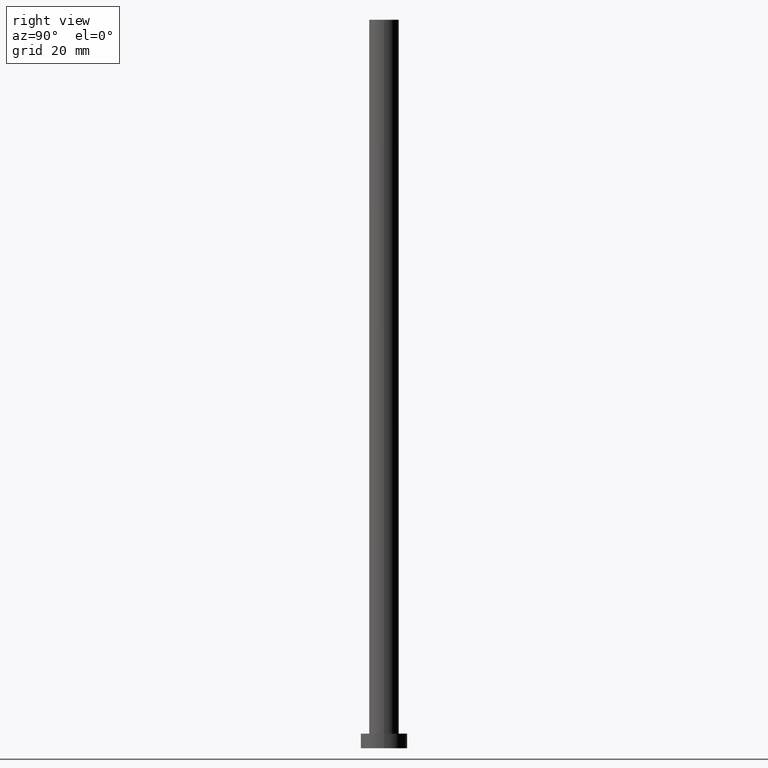
[diagram: clean part render]
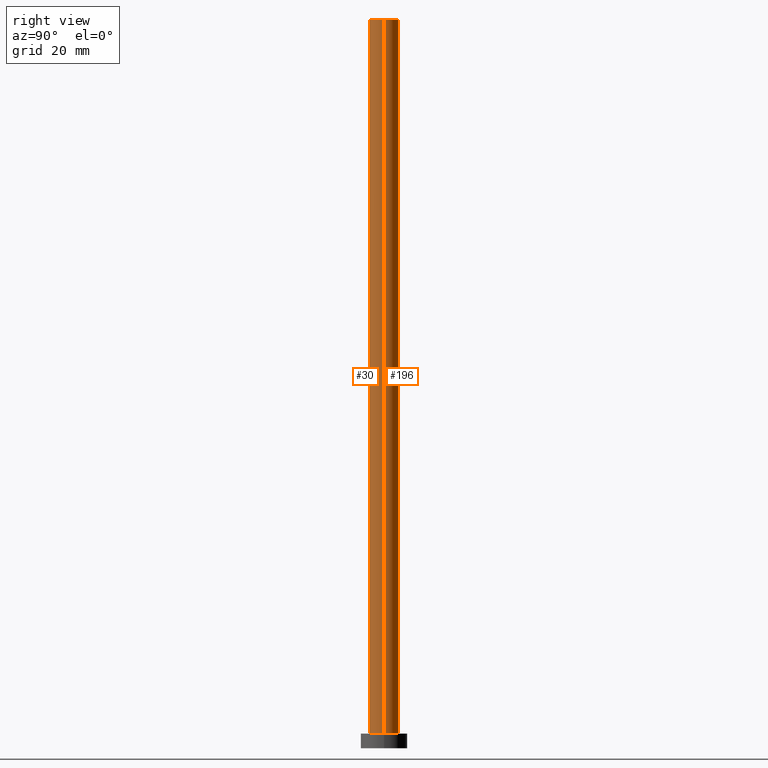
[diagram: same view with one multi-face feature highlighted, each face labeled with its STEP entity id]
A machine part, right view. The highlighted faces form ONE feature: a constant-radius fillet chain: 2 tangent blend faces with common blend radius 5.1 mm. The faces share edges in the B-rep.
Their STEP definitions:
[1] entity #196 (Cylinder):
#18 = ORIENTED_EDGE ( 'NONE', *, *, #251, .F. ) ;
#20 = CARTESIAN_POINT ( 'NONE',  ( -5.099999999999999645, 0.000000000000000000, 250.0000000000000000 ) ) ;
#22 = AXIS2_PLACEMENT_3D ( 'NONE', #241, #71, #64 ) ;
#31 = DIRECTION ( 'NONE',  ( 1.000000000000000000, 0.000000000000000000, 0.000000000000000000 ) ) ;
#39 = VERTEX_POINT ( 'NONE', #253 ) ;
#42 = CARTESIAN_POINT ( 'NONE',  ( 5.099999999999999645, 6.245698675651500839E-16, 250.0000000000000000 ) ) ;
#45 = AXIS2_PLACEMENT_3D ( 'NONE', #177, #107, #145 ) ;
#60 = ORIENTED_EDGE ( 'NONE', *, *, #222, .F. ) ;
#64 = DIRECTION ( 'NONE',  ( -1.000000000000000000, 0.000000000000000000, 0.000000000000000000 ) ) ;
#71 = DIRECTION ( 'NONE',  ( -0.000000000000000000, -0.000000000000000000, -1.000000000000000000 ) ) ;
#73 = EDGE_CURVE ( 'NONE', #218, #39, #232, .T. ) ;
#75 = DIRECTION ( 'NONE',  ( 0.000000000000000000, 0.000000000000000000, 1.000000000000000000 ) ) ;
#80 = VERTEX_POINT ( 'NONE', #179 ) ;
#89 = CARTESIAN_POINT ( 'NONE',  ( -5.099999999999999645, 0.000000000000000000, 5.000000000000000000 ) ) ;
#94 = ORIENTED_EDGE ( 'NONE', *, *, #73, .T. ) ;
#99 = ORIENTED_EDGE ( 'NONE', *, *, #130, .T. ) ;
#100 = VECTOR ( 'NONE', #237, 1000.000000000000000 ) ;
#104 = DIRECTION ( 'NONE',  ( -0.000000000000000000, -0.000000000000000000, -1.000000000000000000 ) ) ;
#107 = DIRECTION ( 'NONE',  ( 0.000000000000000000, 0.000000000000000000, 1.000000000000000000 ) ) ;
#118 = CARTESIAN_POINT ( 'NONE',  ( 5.099999999999999645, 6.245698675651500839E-16, 250.0000000000000000 ) ) ;
#125 = FACE_OUTER_BOUND ( 'NONE', #174, .T. ) ;
#126 = CYLINDRICAL_SURFACE ( 'NONE', #22, 5.099999999999999645 ) ;
#130 = EDGE_CURVE ( 'NONE', #39, #255, #183, .T. ) ;
#145 = DIRECTION ( 'NONE',  ( 1.000000000000000000, 0.000000000000000000, 0.000000000000000000 ) ) ;
#156 = CIRCLE ( 'NONE', #202, 5.099999999999999645 ) ;
#167 = CARTESIAN_POINT ( 'NONE',  ( 0.000000000000000000, 0.000000000000000000, 250.0000000000000000 ) ) ;
#169 = VECTOR ( 'NONE', #104, 1000.000000000000000 ) ;
#174 = EDGE_LOOP ( 'NONE', ( #18, #94, #99, #60 ) ) ;
#177 = CARTESIAN_POINT ( 'NONE',  ( 0.000000000000000000, 0.000000000000000000, 5.000000000000000000 ) ) ;
#179 = CARTESIAN_POINT ( 'NONE',  ( -5.099999999999999645, 0.000000000000000000, 250.0000000000000000 ) ) ;
#183 = CIRCLE ( 'NONE', #45, 5.099999999999999645 ) ;
#196 = ADVANCED_FACE ( 'NONE', ( #125 ), #126, .T. ) ;
#199 = LINE ( 'NONE', #20, #169 ) ;
#202 = AXIS2_PLACEMENT_3D ( 'NONE', #167, #75, #31 ) ;
#218 = VERTEX_POINT ( 'NONE', #42 ) ;
#222 = EDGE_CURVE ( 'NONE', #80, #255, #199, .T. ) ;
#232 = LINE ( 'NONE', #118, #100 ) ;
#237 = DIRECTION ( 'NONE',  ( -0.000000000000000000, -0.000000000000000000, -1.000000000000000000 ) ) ;
#241 = CARTESIAN_POINT ( 'NONE',  ( 0.000000000000000000, 0.000000000000000000, 250.0000000000000000 ) ) ;
#251 = EDGE_CURVE ( 'NONE', #218, #80, #156, .T. ) ;
#253 = CARTESIAN_POINT ( 'NONE',  ( 5.099999999999999645, 6.245698675651500839E-16, 5.000000000000000000 ) ) ;
#255 = VERTEX_POINT ( 'NONE', #89 ) ;
[2] entity #30 (Cylinder):
#13 = ORIENTED_EDGE ( 'NONE', *, *, #187, .T. ) ;
#17 = ORIENTED_EDGE ( 'NONE', *, *, #101, .F. ) ;
#20 = CARTESIAN_POINT ( 'NONE',  ( -5.099999999999999645, 0.000000000000000000, 250.0000000000000000 ) ) ;
#21 = DIRECTION ( 'NONE',  ( 0.000000000000000000, 0.000000000000000000, 1.000000000000000000 ) ) ;
#30 = ADVANCED_FACE ( 'NONE', ( #36 ), #158, .T. ) ;
#36 = FACE_OUTER_BOUND ( 'NONE', #58, .T. ) ;
#39 = VERTEX_POINT ( 'NONE', #253 ) ;
#40 = AXIS2_PLACEMENT_3D ( 'NONE', #239, #67, #205 ) ;
#42 = CARTESIAN_POINT ( 'NONE',  ( 5.099999999999999645, 6.245698675651500839E-16, 250.0000000000000000 ) ) ;
#44 = CARTESIAN_POINT ( 'NONE',  ( 0.000000000000000000, 0.000000000000000000, 5.000000000000000000 ) ) ;
#54 = AXIS2_PLACEMENT_3D ( 'NONE', #117, #171, #140 ) ;
#58 = EDGE_LOOP ( 'NONE', ( #154, #17, #95, #13 ) ) ;
#67 = DIRECTION ( 'NONE',  ( 0.000000000000000000, 0.000000000000000000, 1.000000000000000000 ) ) ;
#73 = EDGE_CURVE ( 'NONE', #218, #39, #232, .T. ) ;
#74 = AXIS2_PLACEMENT_3D ( 'NONE', #44, #21, #236 ) ;
#80 = VERTEX_POINT ( 'NONE', #179 ) ;
#89 = CARTESIAN_POINT ( 'NONE',  ( -5.099999999999999645, 0.000000000000000000, 5.000000000000000000 ) ) ;
#95 = ORIENTED_EDGE ( 'NONE', *, *, #222, .T. ) ;
#100 = VECTOR ( 'NONE', #237, 1000.000000000000000 ) ;
#101 = EDGE_CURVE ( 'NONE', #80, #218, #240, .T. ) ;
#104 = DIRECTION ( 'NONE',  ( -0.000000000000000000, -0.000000000000000000, -1.000000000000000000 ) ) ;
#117 = CARTESIAN_POINT ( 'NONE',  ( 0.000000000000000000, 0.000000000000000000, 250.0000000000000000 ) ) ;
#118 = CARTESIAN_POINT ( 'NONE',  ( 5.099999999999999645, 6.245698675651500839E-16, 250.0000000000000000 ) ) ;
#140 = DIRECTION ( 'NONE',  ( -1.000000000000000000, 0.000000000000000000, 0.000000000000000000 ) ) ;
#154 = ORIENTED_EDGE ( 'NONE', *, *, #73, .F. ) ;
#158 = CYLINDRICAL_SURFACE ( 'NONE', #54, 5.099999999999999645 ) ;
#169 = VECTOR ( 'NONE', #104, 1000.000000000000000 ) ;
#171 = DIRECTION ( 'NONE',  ( -0.000000000000000000, -0.000000000000000000, -1.000000000000000000 ) ) ;
#178 = CIRCLE ( 'NONE', #74, 5.099999999999999645 ) ;
#179 = CARTESIAN_POINT ( 'NONE',  ( -5.099999999999999645, 0.000000000000000000, 250.0000000000000000 ) ) ;
#187 = EDGE_CURVE ( 'NONE', #255, #39, #178, .T. ) ;
#199 = LINE ( 'NONE', #20, #169 ) ;
#205 = DIRECTION ( 'NONE',  ( 1.000000000000000000, 0.000000000000000000, 0.000000000000000000 ) ) ;
#218 = VERTEX_POINT ( 'NONE', #42 ) ;
#222 = EDGE_CURVE ( 'NONE', #80, #255, #199, .T. ) ;
#232 = LINE ( 'NONE', #118, #100 ) ;
#236 = DIRECTION ( 'NONE',  ( 1.000000000000000000, 0.000000000000000000, 0.000000000000000000 ) ) ;
#237 = DIRECTION ( 'NONE',  ( -0.000000000000000000, -0.000000000000000000, -1.000000000000000000 ) ) ;
#239 = CARTESIAN_POINT ( 'NONE',  ( 0.000000000000000000, 0.000000000000000000, 250.0000000000000000 ) ) ;
#240 = CIRCLE ( 'NONE', #40, 5.099999999999999645 ) ;
#253 = CARTESIAN_POINT ( 'NONE',  ( 5.099999999999999645, 6.245698675651500839E-16, 5.000000000000000000 ) ) ;
#255 = VERTEX_POINT ( 'NONE', #89 ) ;